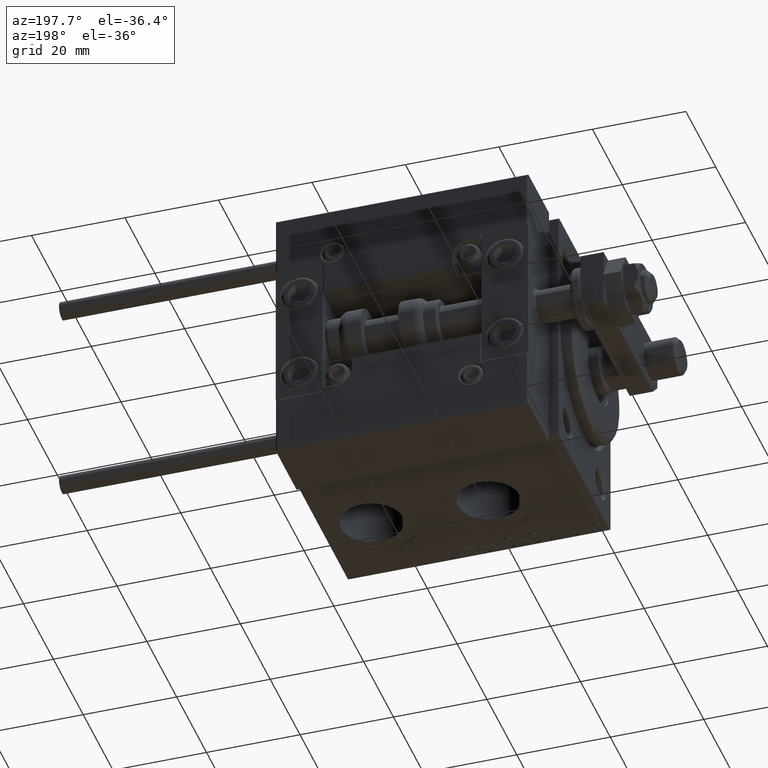
[diagram: clean part render]
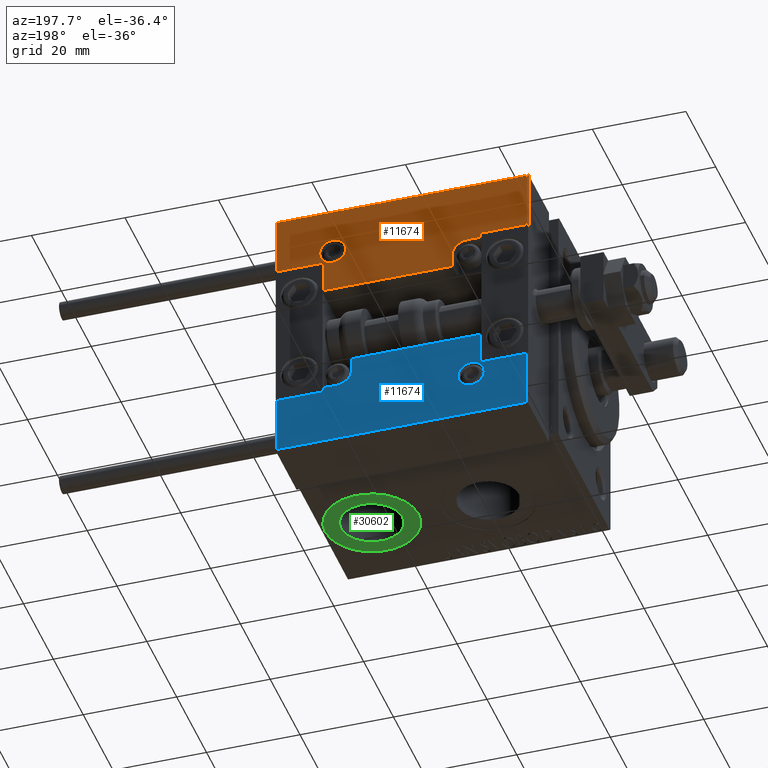
[diagram: same view with three faces highlighted in distinct colors, each labeled with its STEP entity id]
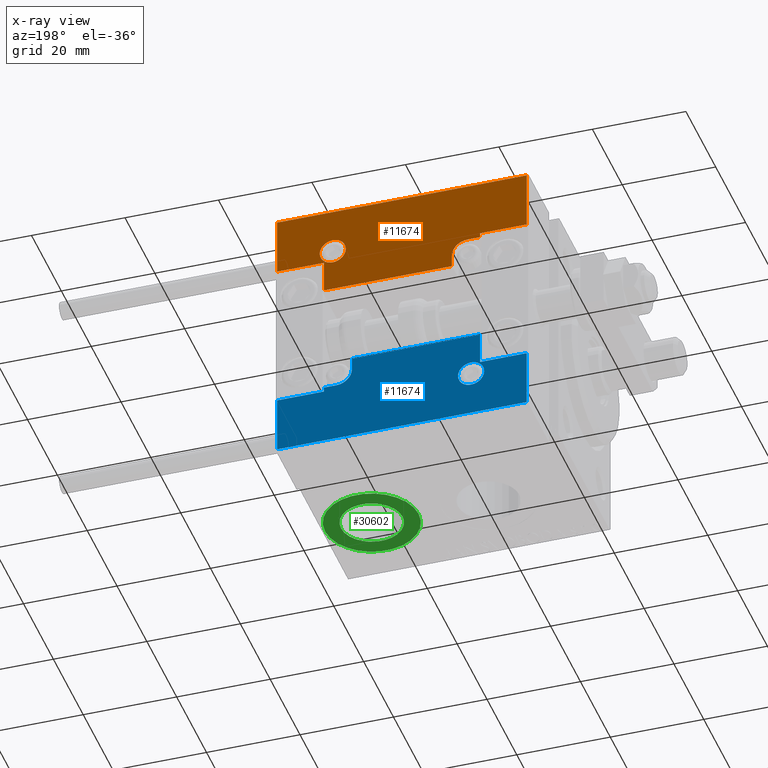
[diagram: x-ray of the same camera — body ghosted, the three highlighted faces saturated]
A machine part, auxiliary view with three faces highlighted in distinct colors.
The next image is the same camera in x-ray (body ghosted, the three faces saturated) — at least one of them is partly hidden behind the body in this view.
Their STEP definitions:

[orange] entity #11674 — the highlighted planar face has unit normal (-0, 1, -0).
#293 = VECTOR ( 'NONE', #27713, 1000.000000000000000 ) ;
#396 = AXIS2_PLACEMENT_3D ( 'NONE', #26372, #42712, #6021 ) ;
#1328 = EDGE_CURVE ( 'NONE', #13788, #8848, #25632, .T. ) ;
#1568 = VECTOR ( 'NONE', #51155, 1000.000000000000000 ) ;
#1698 = DIRECTION ( 'NONE',  ( 1.000000000000000000, -1.734723475976815230E-16, 0.000000000000000000 ) ) ;
#2547 = VERTEX_POINT ( 'NONE', #34219 ) ;
#2922 = DIRECTION ( 'NONE',  ( 1.000000000000000000, 0.000000000000000000, 0.000000000000000000 ) ) ;
#3117 = CARTESIAN_POINT ( 'NONE',  ( 27.00000000000006395, 7.300000000000007816, 14.00000000000000000 ) ) ;
#4747 = CARTESIAN_POINT ( 'NONE',  ( -26.69999999999993534, 19.70000000000002061, 14.00000000000000000 ) ) ;
#5174 = EDGE_CURVE ( 'NONE', #6584, #23267, #15389, .T. ) ;
#5377 = PLANE ( 'NONE',  #20877 ) ;
#5763 = CARTESIAN_POINT ( 'NONE',  ( -26.69999999999994600, 7.000000000000005329, 14.00000000000000000 ) ) ;
#6021 = DIRECTION ( 'NONE',  ( 1.000000000000000000, 0.000000000000000000, 0.000000000000000000 ) ) ;
#6494 = AXIS2_PLACEMENT_3D ( 'NONE', #15239, #27275, #43900 ) ;
#6566 = CARTESIAN_POINT ( 'NONE',  ( 26.70000000000006324, 20.00000000000001776, 14.00000000000000000 ) ) ;
#6579 = EDGE_LOOP ( 'NONE', ( #39318, #48779 ) ) ;
#6584 = VERTEX_POINT ( 'NONE', #27952 ) ;
#6967 = CARTESIAN_POINT ( 'NONE',  ( 13.99999999999999822, 6.300000000000001599, 14.00000000000000000 ) ) ;
#7907 = VERTEX_POINT ( 'NONE', #6967 ) ;
#8215 = CARTESIAN_POINT ( 'NONE',  ( 10.69999999999999929, 0.3000000000000032085, 14.00000000000000000 ) ) ;
#8366 = ORIENTED_EDGE ( 'NONE', *, *, #10944, .T. ) ;
#8617 = VECTOR ( 'NONE', #47801, 1000.000000000000000 ) ;
#8848 = VERTEX_POINT ( 'NONE', #22968 ) ;
#9412 = FACE_BOUND ( 'NONE', #6579, .T. ) ;
#9906 = DIRECTION ( 'NONE',  ( 1.000000000000000000, -0.000000000000000000, 0.000000000000000000 ) ) ;
#10030 = ORIENTED_EDGE ( 'NONE', *, *, #44126, .T. ) ;
#10433 = CARTESIAN_POINT ( 'NONE',  ( 11.00000000000000000, 0.3000000000000032085, 14.00000000000000000 ) ) ;
#10566 = CARTESIAN_POINT ( 'NONE',  ( -16.69999999999999218, 3.252606517456513302E-15, 14.00000000000000000 ) ) ;
#10944 = EDGE_CURVE ( 'NONE', #23267, #33198, #15933, .T. ) ;
#11674 = ADVANCED_FACE ( 'NONE', ( #9412, #42081 ), #5377, .T. ) ;
#13207 = LINE ( 'NONE', #13739, #21238 ) ;
#13739 = CARTESIAN_POINT ( 'NONE',  ( 17.00000000000000000, 6.300000000000003375, 14.00000000000000000 ) ) ;
#13788 = VERTEX_POINT ( 'NONE', #33462 ) ;
#14249 = CARTESIAN_POINT ( 'NONE',  ( -26.69999999999994600, 7.300000000000005151, 14.00000000000000000 ) ) ;
#14444 = LINE ( 'NONE', #10433, #33395 ) ;
#15095 = CARTESIAN_POINT ( 'NONE',  ( -16.69999999999999218, 0.3000000000000032085, 14.00000000000000000 ) ) ;
#15239 = CARTESIAN_POINT ( 'NONE',  ( -14.79999999999994920, 9.800000000000004263, 14.00000000000000000 ) ) ;
#15389 = LINE ( 'NONE', #6566, #8617 ) ;
#15557 = ORIENTED_EDGE ( 'NONE', *, *, #26309, .T. ) ;
#15933 = LINE ( 'NONE', #20205, #293 ) ;
#16880 = DIRECTION ( 'NONE',  ( 0.000000000000000000, -0.000000000000000000, -1.000000000000000000 ) ) ;
#17141 = VECTOR ( 'NONE', #47609, 1000.000000000000000 ) ;
#18694 = EDGE_CURVE ( 'NONE', #2547, #7907, #50051, .T. ) ;
#18986 = CARTESIAN_POINT ( 'NONE',  ( 26.70000000000006324, 19.70000000000001705, 14.00000000000000000 ) ) ;
#19330 = LINE ( 'NONE', #35394, #28197 ) ;
#19795 = CARTESIAN_POINT ( 'NONE',  ( 10.69999999999999929, 3.000000000000003109, 14.00000000000000000 ) ) ;
#20205 = CARTESIAN_POINT ( 'NONE',  ( -26.99999999999993605, 19.70000000000002061, 14.00000000000000000 ) ) ;
#20237 = CARTESIAN_POINT ( 'NONE',  ( 16.69999999999999929, 6.300000000000003375, 14.00000000000000000 ) ) ;
#20595 = EDGE_CURVE ( 'NONE', #8848, #13788, #39817, .T. ) ;
#20877 = AXIS2_PLACEMENT_3D ( 'NONE', #26524, #47160, #2922 ) ;
#21238 = VECTOR ( 'NONE', #49891, 1000.000000000000000 ) ;
#21705 = DIRECTION ( 'NONE',  ( 1.000000000000000000, 0.000000000000000000, 0.000000000000000000 ) ) ;
#21888 = ORIENTED_EDGE ( 'NONE', *, *, #37276, .T. ) ;
#22402 = ORIENTED_EDGE ( 'NONE', *, *, #18694, .T. ) ;
#22620 = LINE ( 'NONE', #10566, #26475 ) ;
#22968 = CARTESIAN_POINT ( 'NONE',  ( -17.59999999999994813, 9.800000000000004263, 14.00000000000000000 ) ) ;
#23267 = VERTEX_POINT ( 'NONE', #18986 ) ;
#25632 = CIRCLE ( 'NONE', #44436, 2.800000000000000266 ) ;
#26309 = EDGE_CURVE ( 'NONE', #34653, #41221, #50993, .T. ) ;
#26372 = CARTESIAN_POINT ( 'NONE',  ( 13.99999999999999822, 3.000000000000002665, 14.00000000000000000 ) ) ;
#26475 = VECTOR ( 'NONE', #39721, 1000.000000000000000 ) ;
#26524 = CARTESIAN_POINT ( 'NONE',  ( 0.000000000000000000, 0.000000000000000000, 14.00000000000000000 ) ) ;
#26613 = CARTESIAN_POINT ( 'NONE',  ( -16.99999999999999289, 7.300000000000003375, 14.00000000000000000 ) ) ;
#27275 = DIRECTION ( 'NONE',  ( 0.000000000000000000, -0.000000000000000000, -1.000000000000000000 ) ) ;
#27713 = DIRECTION ( 'NONE',  ( -1.000000000000000000, 6.424901762877063495E-17, -0.000000000000000000 ) ) ;
#27731 = CARTESIAN_POINT ( 'NONE',  ( -16.69999999999999218, 7.300000000000003375, 14.00000000000000000 ) ) ;
#27952 = CARTESIAN_POINT ( 'NONE',  ( 26.70000000000006324, 7.300000000000007816, 14.00000000000000000 ) ) ;
#28197 = VECTOR ( 'NONE', #47727, 1000.000000000000000 ) ;
#31306 = LINE ( 'NONE', #19795, #1568 ) ;
#33198 = VERTEX_POINT ( 'NONE', #4747 ) ;
#33395 = VECTOR ( 'NONE', #9906, 1000.000000000000000 ) ;
#33462 = CARTESIAN_POINT ( 'NONE',  ( -11.99999999999994849, 9.800000000000004263, 14.00000000000000000 ) ) ;
#33654 = ORIENTED_EDGE ( 'NONE', *, *, #48073, .T. ) ;
#33904 = ORIENTED_EDGE ( 'NONE', *, *, #5174, .T. ) ;
#34219 = CARTESIAN_POINT ( 'NONE',  ( 10.69999999999999929, 3.000000000000003109, 14.00000000000000000 ) ) ;
#34653 = VERTEX_POINT ( 'NONE', #14249 ) ;
#35394 = CARTESIAN_POINT ( 'NONE',  ( 16.69999999999999929, 7.000000000000009770, 14.00000000000000000 ) ) ;
#37276 = EDGE_CURVE ( 'NONE', #33198, #34653, #42463, .T. ) ;
#38396 = EDGE_CURVE ( 'NONE', #39062, #49652, #14444, .T. ) ;
#39062 = VERTEX_POINT ( 'NONE', #15095 ) ;
#39318 = ORIENTED_EDGE ( 'NONE', *, *, #1328, .T. ) ;
#39668 = CARTESIAN_POINT ( 'NONE',  ( 16.69999999999999929, 7.300000000000009592, 14.00000000000000000 ) ) ;
#39721 = DIRECTION ( 'NONE',  ( 0.000000000000000000, -1.000000000000000000, 0.000000000000000000 ) ) ;
#39817 = CIRCLE ( 'NONE', #6494, 2.800000000000000266 ) ;
#41221 = VERTEX_POINT ( 'NONE', #27731 ) ;
#41568 = ORIENTED_EDGE ( 'NONE', *, *, #43061, .T. ) ;
#41575 = ORIENTED_EDGE ( 'NONE', *, *, #38396, .T. ) ;
#41781 = EDGE_CURVE ( 'NONE', #7907, #47295, #13207, .T. ) ;
#42081 = FACE_OUTER_BOUND ( 'NONE', #48149, .T. ) ;
#42463 = LINE ( 'NONE', #5763, #44599 ) ;
#42712 = DIRECTION ( 'NONE',  ( 0.000000000000000000, -0.000000000000000000, -1.000000000000000000 ) ) ;
#43061 = EDGE_CURVE ( 'NONE', #49652, #2547, #31306, .T. ) ;
#43232 = ORIENTED_EDGE ( 'NONE', *, *, #41781, .T. ) ;
#43331 = LINE ( 'NONE', #3117, #17141 ) ;
#43900 = DIRECTION ( 'NONE',  ( 1.000000000000000000, 0.000000000000000000, 0.000000000000000000 ) ) ;
#44126 = EDGE_CURVE ( 'NONE', #41221, #39062, #22620, .T. ) ;
#44436 = AXIS2_PLACEMENT_3D ( 'NONE', #50621, #16880, #21705 ) ;
#44599 = VECTOR ( 'NONE', #47009, 1000.000000000000000 ) ;
#45460 = VERTEX_POINT ( 'NONE', #39668 ) ;
#47009 = DIRECTION ( 'NONE',  ( -8.006416042969869188E-16, -1.000000000000000000, 0.000000000000000000 ) ) ;
#47160 = DIRECTION ( 'NONE',  ( -0.000000000000000000, 0.000000000000000000, 1.000000000000000000 ) ) ;
#47295 = VERTEX_POINT ( 'NONE', #20237 ) ;
#47609 = DIRECTION ( 'NONE',  ( 1.000000000000000000, -1.734723475976796001E-16, 0.000000000000000000 ) ) ;
#47727 = DIRECTION ( 'NONE',  ( 9.912705577010318647E-16, 1.000000000000000000, 0.000000000000000000 ) ) ;
#47801 = DIRECTION ( 'NONE',  ( 0.000000000000000000, 1.000000000000000000, -0.000000000000000000 ) ) ;
#48073 = EDGE_CURVE ( 'NONE', #47295, #45460, #19330, .T. ) ;
#48149 = EDGE_LOOP ( 'NONE', ( #10030, #41575, #41568, #22402, #43232, #33654, #49662, #33904, #8366, #21888, #15557 ) ) ;
#48463 = VECTOR ( 'NONE', #1698, 1000.000000000000000 ) ;
#48779 = ORIENTED_EDGE ( 'NONE', *, *, #20595, .T. ) ;
#49451 = EDGE_CURVE ( 'NONE', #45460, #6584, #43331, .T. ) ;
#49652 = VERTEX_POINT ( 'NONE', #8215 ) ;
#49662 = ORIENTED_EDGE ( 'NONE', *, *, #49451, .T. ) ;
#49891 = DIRECTION ( 'NONE',  ( 1.000000000000000000, 5.782411586589357639E-16, -0.000000000000000000 ) ) ;
#50051 = CIRCLE ( 'NONE', #396, 3.299999999999997158 ) ;
#50621 = CARTESIAN_POINT ( 'NONE',  ( -14.79999999999994920, 9.800000000000004263, 14.00000000000000000 ) ) ;
#50993 = LINE ( 'NONE', #26613, #48463 ) ;
#51155 = DIRECTION ( 'NONE',  ( -0.000000000000000000, 1.000000000000000000, -0.000000000000000000 ) ) ;

[blue] entity #11674 — the highlighted planar face has unit normal (-0, 1, -0).
#293 = VECTOR ( 'NONE', #27713, 1000.000000000000000 ) ;
#396 = AXIS2_PLACEMENT_3D ( 'NONE', #26372, #42712, #6021 ) ;
#1328 = EDGE_CURVE ( 'NONE', #13788, #8848, #25632, .T. ) ;
#1568 = VECTOR ( 'NONE', #51155, 1000.000000000000000 ) ;
#1698 = DIRECTION ( 'NONE',  ( 1.000000000000000000, -1.734723475976815230E-16, 0.000000000000000000 ) ) ;
#2547 = VERTEX_POINT ( 'NONE', #34219 ) ;
#2922 = DIRECTION ( 'NONE',  ( 1.000000000000000000, 0.000000000000000000, 0.000000000000000000 ) ) ;
#3117 = CARTESIAN_POINT ( 'NONE',  ( 27.00000000000006395, 7.300000000000007816, 14.00000000000000000 ) ) ;
#4747 = CARTESIAN_POINT ( 'NONE',  ( -26.69999999999993534, 19.70000000000002061, 14.00000000000000000 ) ) ;
#5174 = EDGE_CURVE ( 'NONE', #6584, #23267, #15389, .T. ) ;
#5377 = PLANE ( 'NONE',  #20877 ) ;
#5763 = CARTESIAN_POINT ( 'NONE',  ( -26.69999999999994600, 7.000000000000005329, 14.00000000000000000 ) ) ;
#6021 = DIRECTION ( 'NONE',  ( 1.000000000000000000, 0.000000000000000000, 0.000000000000000000 ) ) ;
#6494 = AXIS2_PLACEMENT_3D ( 'NONE', #15239, #27275, #43900 ) ;
#6566 = CARTESIAN_POINT ( 'NONE',  ( 26.70000000000006324, 20.00000000000001776, 14.00000000000000000 ) ) ;
#6579 = EDGE_LOOP ( 'NONE', ( #39318, #48779 ) ) ;
#6584 = VERTEX_POINT ( 'NONE', #27952 ) ;
#6967 = CARTESIAN_POINT ( 'NONE',  ( 13.99999999999999822, 6.300000000000001599, 14.00000000000000000 ) ) ;
#7907 = VERTEX_POINT ( 'NONE', #6967 ) ;
#8215 = CARTESIAN_POINT ( 'NONE',  ( 10.69999999999999929, 0.3000000000000032085, 14.00000000000000000 ) ) ;
#8366 = ORIENTED_EDGE ( 'NONE', *, *, #10944, .T. ) ;
#8617 = VECTOR ( 'NONE', #47801, 1000.000000000000000 ) ;
#8848 = VERTEX_POINT ( 'NONE', #22968 ) ;
#9412 = FACE_BOUND ( 'NONE', #6579, .T. ) ;
#9906 = DIRECTION ( 'NONE',  ( 1.000000000000000000, -0.000000000000000000, 0.000000000000000000 ) ) ;
#10030 = ORIENTED_EDGE ( 'NONE', *, *, #44126, .T. ) ;
#10433 = CARTESIAN_POINT ( 'NONE',  ( 11.00000000000000000, 0.3000000000000032085, 14.00000000000000000 ) ) ;
#10566 = CARTESIAN_POINT ( 'NONE',  ( -16.69999999999999218, 3.252606517456513302E-15, 14.00000000000000000 ) ) ;
#10944 = EDGE_CURVE ( 'NONE', #23267, #33198, #15933, .T. ) ;
#11674 = ADVANCED_FACE ( 'NONE', ( #9412, #42081 ), #5377, .T. ) ;
#13207 = LINE ( 'NONE', #13739, #21238 ) ;
#13739 = CARTESIAN_POINT ( 'NONE',  ( 17.00000000000000000, 6.300000000000003375, 14.00000000000000000 ) ) ;
#13788 = VERTEX_POINT ( 'NONE', #33462 ) ;
#14249 = CARTESIAN_POINT ( 'NONE',  ( -26.69999999999994600, 7.300000000000005151, 14.00000000000000000 ) ) ;
#14444 = LINE ( 'NONE', #10433, #33395 ) ;
#15095 = CARTESIAN_POINT ( 'NONE',  ( -16.69999999999999218, 0.3000000000000032085, 14.00000000000000000 ) ) ;
#15239 = CARTESIAN_POINT ( 'NONE',  ( -14.79999999999994920, 9.800000000000004263, 14.00000000000000000 ) ) ;
#15389 = LINE ( 'NONE', #6566, #8617 ) ;
#15557 = ORIENTED_EDGE ( 'NONE', *, *, #26309, .T. ) ;
#15933 = LINE ( 'NONE', #20205, #293 ) ;
#16880 = DIRECTION ( 'NONE',  ( 0.000000000000000000, -0.000000000000000000, -1.000000000000000000 ) ) ;
#17141 = VECTOR ( 'NONE', #47609, 1000.000000000000000 ) ;
#18694 = EDGE_CURVE ( 'NONE', #2547, #7907, #50051, .T. ) ;
#18986 = CARTESIAN_POINT ( 'NONE',  ( 26.70000000000006324, 19.70000000000001705, 14.00000000000000000 ) ) ;
#19330 = LINE ( 'NONE', #35394, #28197 ) ;
#19795 = CARTESIAN_POINT ( 'NONE',  ( 10.69999999999999929, 3.000000000000003109, 14.00000000000000000 ) ) ;
#20205 = CARTESIAN_POINT ( 'NONE',  ( -26.99999999999993605, 19.70000000000002061, 14.00000000000000000 ) ) ;
#20237 = CARTESIAN_POINT ( 'NONE',  ( 16.69999999999999929, 6.300000000000003375, 14.00000000000000000 ) ) ;
#20595 = EDGE_CURVE ( 'NONE', #8848, #13788, #39817, .T. ) ;
#20877 = AXIS2_PLACEMENT_3D ( 'NONE', #26524, #47160, #2922 ) ;
#21238 = VECTOR ( 'NONE', #49891, 1000.000000000000000 ) ;
#21705 = DIRECTION ( 'NONE',  ( 1.000000000000000000, 0.000000000000000000, 0.000000000000000000 ) ) ;
#21888 = ORIENTED_EDGE ( 'NONE', *, *, #37276, .T. ) ;
#22402 = ORIENTED_EDGE ( 'NONE', *, *, #18694, .T. ) ;
#22620 = LINE ( 'NONE', #10566, #26475 ) ;
#22968 = CARTESIAN_POINT ( 'NONE',  ( -17.59999999999994813, 9.800000000000004263, 14.00000000000000000 ) ) ;
#23267 = VERTEX_POINT ( 'NONE', #18986 ) ;
#25632 = CIRCLE ( 'NONE', #44436, 2.800000000000000266 ) ;
#26309 = EDGE_CURVE ( 'NONE', #34653, #41221, #50993, .T. ) ;
#26372 = CARTESIAN_POINT ( 'NONE',  ( 13.99999999999999822, 3.000000000000002665, 14.00000000000000000 ) ) ;
#26475 = VECTOR ( 'NONE', #39721, 1000.000000000000000 ) ;
#26524 = CARTESIAN_POINT ( 'NONE',  ( 0.000000000000000000, 0.000000000000000000, 14.00000000000000000 ) ) ;
#26613 = CARTESIAN_POINT ( 'NONE',  ( -16.99999999999999289, 7.300000000000003375, 14.00000000000000000 ) ) ;
#27275 = DIRECTION ( 'NONE',  ( 0.000000000000000000, -0.000000000000000000, -1.000000000000000000 ) ) ;
#27713 = DIRECTION ( 'NONE',  ( -1.000000000000000000, 6.424901762877063495E-17, -0.000000000000000000 ) ) ;
#27731 = CARTESIAN_POINT ( 'NONE',  ( -16.69999999999999218, 7.300000000000003375, 14.00000000000000000 ) ) ;
#27952 = CARTESIAN_POINT ( 'NONE',  ( 26.70000000000006324, 7.300000000000007816, 14.00000000000000000 ) ) ;
#28197 = VECTOR ( 'NONE', #47727, 1000.000000000000000 ) ;
#31306 = LINE ( 'NONE', #19795, #1568 ) ;
#33198 = VERTEX_POINT ( 'NONE', #4747 ) ;
#33395 = VECTOR ( 'NONE', #9906, 1000.000000000000000 ) ;
#33462 = CARTESIAN_POINT ( 'NONE',  ( -11.99999999999994849, 9.800000000000004263, 14.00000000000000000 ) ) ;
#33654 = ORIENTED_EDGE ( 'NONE', *, *, #48073, .T. ) ;
#33904 = ORIENTED_EDGE ( 'NONE', *, *, #5174, .T. ) ;
#34219 = CARTESIAN_POINT ( 'NONE',  ( 10.69999999999999929, 3.000000000000003109, 14.00000000000000000 ) ) ;
#34653 = VERTEX_POINT ( 'NONE', #14249 ) ;
#35394 = CARTESIAN_POINT ( 'NONE',  ( 16.69999999999999929, 7.000000000000009770, 14.00000000000000000 ) ) ;
#37276 = EDGE_CURVE ( 'NONE', #33198, #34653, #42463, .T. ) ;
#38396 = EDGE_CURVE ( 'NONE', #39062, #49652, #14444, .T. ) ;
#39062 = VERTEX_POINT ( 'NONE', #15095 ) ;
#39318 = ORIENTED_EDGE ( 'NONE', *, *, #1328, .T. ) ;
#39668 = CARTESIAN_POINT ( 'NONE',  ( 16.69999999999999929, 7.300000000000009592, 14.00000000000000000 ) ) ;
#39721 = DIRECTION ( 'NONE',  ( 0.000000000000000000, -1.000000000000000000, 0.000000000000000000 ) ) ;
#39817 = CIRCLE ( 'NONE', #6494, 2.800000000000000266 ) ;
#41221 = VERTEX_POINT ( 'NONE', #27731 ) ;
#41568 = ORIENTED_EDGE ( 'NONE', *, *, #43061, .T. ) ;
#41575 = ORIENTED_EDGE ( 'NONE', *, *, #38396, .T. ) ;
#41781 = EDGE_CURVE ( 'NONE', #7907, #47295, #13207, .T. ) ;
#42081 = FACE_OUTER_BOUND ( 'NONE', #48149, .T. ) ;
#42463 = LINE ( 'NONE', #5763, #44599 ) ;
#42712 = DIRECTION ( 'NONE',  ( 0.000000000000000000, -0.000000000000000000, -1.000000000000000000 ) ) ;
#43061 = EDGE_CURVE ( 'NONE', #49652, #2547, #31306, .T. ) ;
#43232 = ORIENTED_EDGE ( 'NONE', *, *, #41781, .T. ) ;
#43331 = LINE ( 'NONE', #3117, #17141 ) ;
#43900 = DIRECTION ( 'NONE',  ( 1.000000000000000000, 0.000000000000000000, 0.000000000000000000 ) ) ;
#44126 = EDGE_CURVE ( 'NONE', #41221, #39062, #22620, .T. ) ;
#44436 = AXIS2_PLACEMENT_3D ( 'NONE', #50621, #16880, #21705 ) ;
#44599 = VECTOR ( 'NONE', #47009, 1000.000000000000000 ) ;
#45460 = VERTEX_POINT ( 'NONE', #39668 ) ;
#47009 = DIRECTION ( 'NONE',  ( -8.006416042969869188E-16, -1.000000000000000000, 0.000000000000000000 ) ) ;
#47160 = DIRECTION ( 'NONE',  ( -0.000000000000000000, 0.000000000000000000, 1.000000000000000000 ) ) ;
#47295 = VERTEX_POINT ( 'NONE', #20237 ) ;
#47609 = DIRECTION ( 'NONE',  ( 1.000000000000000000, -1.734723475976796001E-16, 0.000000000000000000 ) ) ;
#47727 = DIRECTION ( 'NONE',  ( 9.912705577010318647E-16, 1.000000000000000000, 0.000000000000000000 ) ) ;
#47801 = DIRECTION ( 'NONE',  ( 0.000000000000000000, 1.000000000000000000, -0.000000000000000000 ) ) ;
#48073 = EDGE_CURVE ( 'NONE', #47295, #45460, #19330, .T. ) ;
#48149 = EDGE_LOOP ( 'NONE', ( #10030, #41575, #41568, #22402, #43232, #33654, #49662, #33904, #8366, #21888, #15557 ) ) ;
#48463 = VECTOR ( 'NONE', #1698, 1000.000000000000000 ) ;
#48779 = ORIENTED_EDGE ( 'NONE', *, *, #20595, .T. ) ;
#49451 = EDGE_CURVE ( 'NONE', #45460, #6584, #43331, .T. ) ;
#49652 = VERTEX_POINT ( 'NONE', #8215 ) ;
#49662 = ORIENTED_EDGE ( 'NONE', *, *, #49451, .T. ) ;
#49891 = DIRECTION ( 'NONE',  ( 1.000000000000000000, 5.782411586589357639E-16, -0.000000000000000000 ) ) ;
#50051 = CIRCLE ( 'NONE', #396, 3.299999999999997158 ) ;
#50621 = CARTESIAN_POINT ( 'NONE',  ( -14.79999999999994920, 9.800000000000004263, 14.00000000000000000 ) ) ;
#50993 = LINE ( 'NONE', #26613, #48463 ) ;
#51155 = DIRECTION ( 'NONE',  ( -0.000000000000000000, 1.000000000000000000, -0.000000000000000000 ) ) ;

[green] entity #30602 — the highlighted planar face has unit normal (0, 0, -1).
#902 = DIRECTION ( 'NONE',  ( 0.000000000000000000, 0.000000000000000000, -1.000000000000000000 ) ) ;
#1713 = ORIENTED_EDGE ( 'NONE', *, *, #23828, .F. ) ;
#2317 = CIRCLE ( 'NONE', #11728, 6.580000000000002736 ) ;
#2748 = ORIENTED_EDGE ( 'NONE', *, *, #26185, .T. ) ;
#3061 = VERTEX_POINT ( 'NONE', #40280 ) ;
#4174 = PLANE ( 'NONE',  #51221 ) ;
#4673 = DIRECTION ( 'NONE',  ( 0.000000000000000000, 0.000000000000000000, -1.000000000000000000 ) ) ;
#5249 = CIRCLE ( 'NONE', #42045, 6.580000000000002736 ) ;
#5480 = EDGE_CURVE ( 'NONE', #3061, #29079, #5249, .T. ) ;
#6143 = CARTESIAN_POINT ( 'NONE',  ( 45.50000000000000000, -8.514597242955139663E-15, -27.40000000000000924 ) ) ;
#8972 = DIRECTION ( 'NONE',  ( 0.000000000000000000, 0.000000000000000000, -1.000000000000000000 ) ) ;
#11728 = AXIS2_PLACEMENT_3D ( 'NONE', #41384, #4673, #18543 ) ;
#12238 = DIRECTION ( 'NONE',  ( -1.000000000000000000, 0.000000000000000000, -0.000000000000000000 ) ) ;
#12910 = AXIS2_PLACEMENT_3D ( 'NONE', #6143, #42834, #42048 ) ;
#13423 = AXIS2_PLACEMENT_3D ( 'NONE', #17531, #8972, #33595 ) ;
#13581 = EDGE_LOOP ( 'NONE', ( #1713, #25959 ) ) ;
#17531 = CARTESIAN_POINT ( 'NONE',  ( 45.50000000000000000, -8.514597242955139663E-15, -27.40000000000000924 ) ) ;
#18543 = DIRECTION ( 'NONE',  ( -1.000000000000000000, 0.000000000000000000, 0.000000000000000000 ) ) ;
#23199 = CARTESIAN_POINT ( 'NONE',  ( 55.50000000000000000, -7.289950443807786604E-15, -27.40000000000000924 ) ) ;
#23828 = EDGE_CURVE ( 'NONE', #29079, #3061, #2317, .T. ) ;
#25227 = VERTEX_POINT ( 'NONE', #32475 ) ;
#25959 = ORIENTED_EDGE ( 'NONE', *, *, #5480, .F. ) ;
#26185 = EDGE_CURVE ( 'NONE', #43803, #25227, #51042, .T. ) ;
#28029 = FACE_BOUND ( 'NONE', #13581, .T. ) ;
#29079 = VERTEX_POINT ( 'NONE', #39103 ) ;
#30602 = ADVANCED_FACE ( 'NONE', ( #28029, #32582 ), #4174, .T. ) ;
#32317 = CARTESIAN_POINT ( 'NONE',  ( 45.50000000000000000, -8.514597242955139663E-15, -27.40000000000000924 ) ) ;
#32475 = CARTESIAN_POINT ( 'NONE',  ( 35.50000000000000000, -8.514597242955139663E-15, -27.40000000000000924 ) ) ;
#32582 = FACE_OUTER_BOUND ( 'NONE', #51249, .T. ) ;
#33472 = ORIENTED_EDGE ( 'NONE', *, *, #34991, .T. ) ;
#33595 = DIRECTION ( 'NONE',  ( -1.000000000000000000, 0.000000000000000000, 0.000000000000000000 ) ) ;
#34991 = EDGE_CURVE ( 'NONE', #25227, #43803, #48796, .T. ) ;
#39103 = CARTESIAN_POINT ( 'NONE',  ( 38.91999999999999460, -5.788603209277299718E-15, -27.40000000000000924 ) ) ;
#40280 = CARTESIAN_POINT ( 'NONE',  ( 52.07999999999999829, -4.982785615438341465E-15, -27.40000000000000924 ) ) ;
#41350 = DIRECTION ( 'NONE',  ( -1.000000000000000000, 0.000000000000000000, 0.000000000000000000 ) ) ;
#41384 = CARTESIAN_POINT ( 'NONE',  ( 45.50000000000000000, -5.788603209277299718E-15, -27.40000000000000924 ) ) ;
#42045 = AXIS2_PLACEMENT_3D ( 'NONE', #42155, #902, #41350 ) ;
#42048 = DIRECTION ( 'NONE',  ( -1.000000000000000000, 0.000000000000000000, 0.000000000000000000 ) ) ;
#42155 = CARTESIAN_POINT ( 'NONE',  ( 45.50000000000000000, -5.788603209277299718E-15, -27.40000000000000924 ) ) ;
#42834 = DIRECTION ( 'NONE',  ( 0.000000000000000000, 0.000000000000000000, -1.000000000000000000 ) ) ;
#43803 = VERTEX_POINT ( 'NONE', #23199 ) ;
#44127 = DIRECTION ( 'NONE',  ( 0.000000000000000000, 0.000000000000000000, -1.000000000000000000 ) ) ;
#48796 = CIRCLE ( 'NONE', #12910, 10.00000000000000178 ) ;
#51042 = CIRCLE ( 'NONE', #13423, 10.00000000000000178 ) ;
#51221 = AXIS2_PLACEMENT_3D ( 'NONE', #32317, #44127, #12238 ) ;
#51249 = EDGE_LOOP ( 'NONE', ( #33472, #2748 ) ) ;